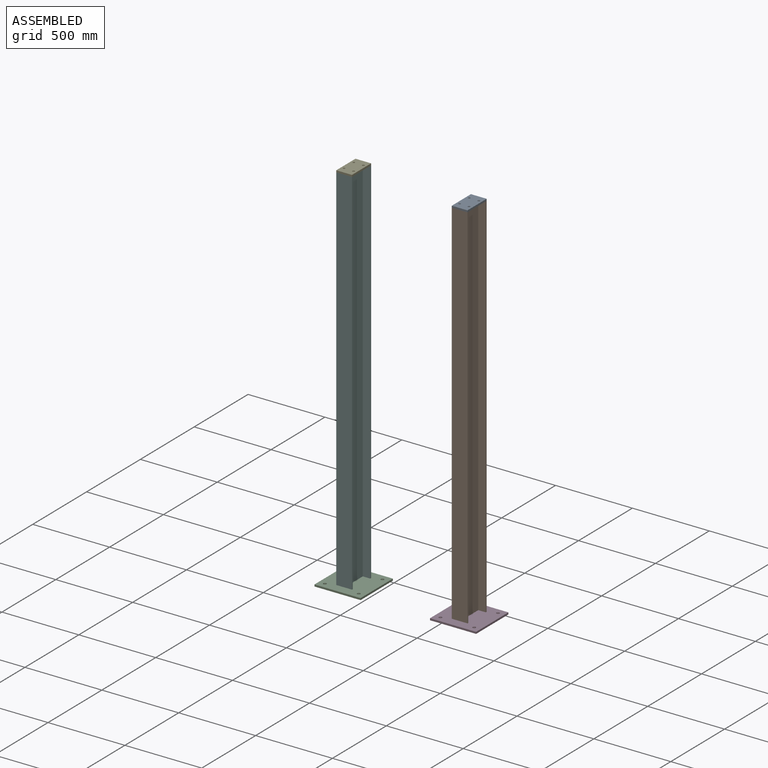
[diagram: assembled view]
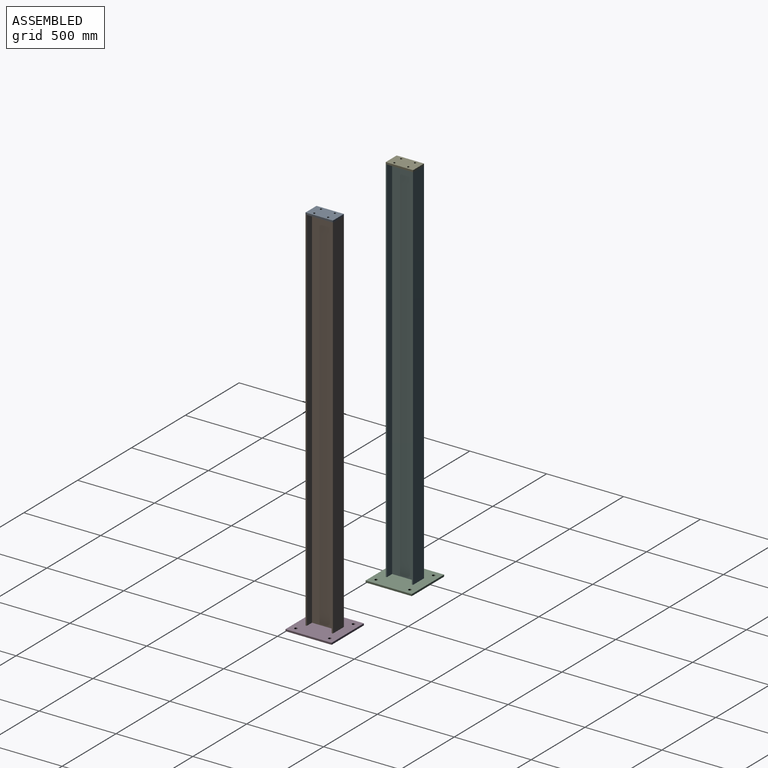
[diagram: assembled view, second angle]
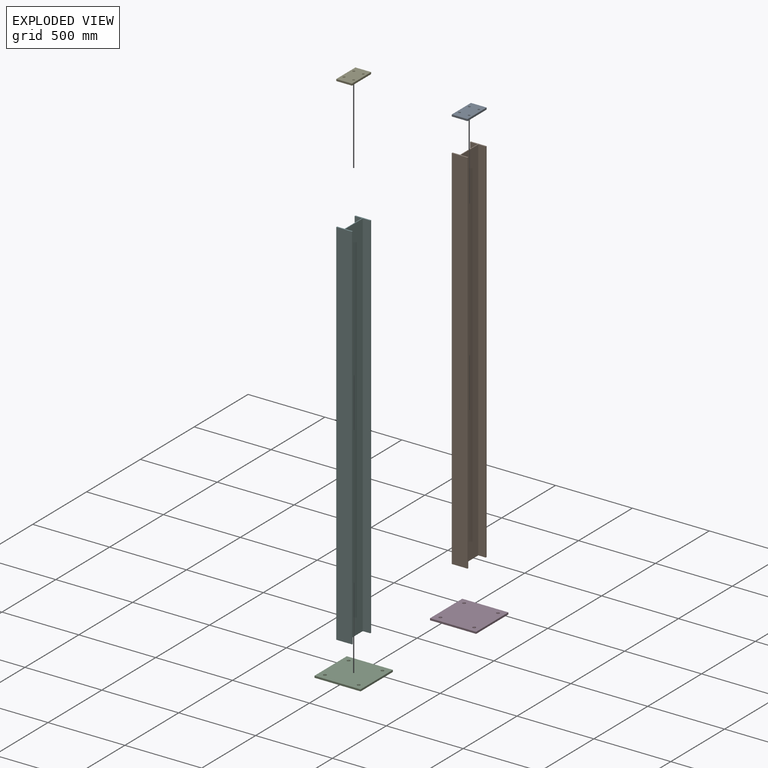
[diagram: exploded view]
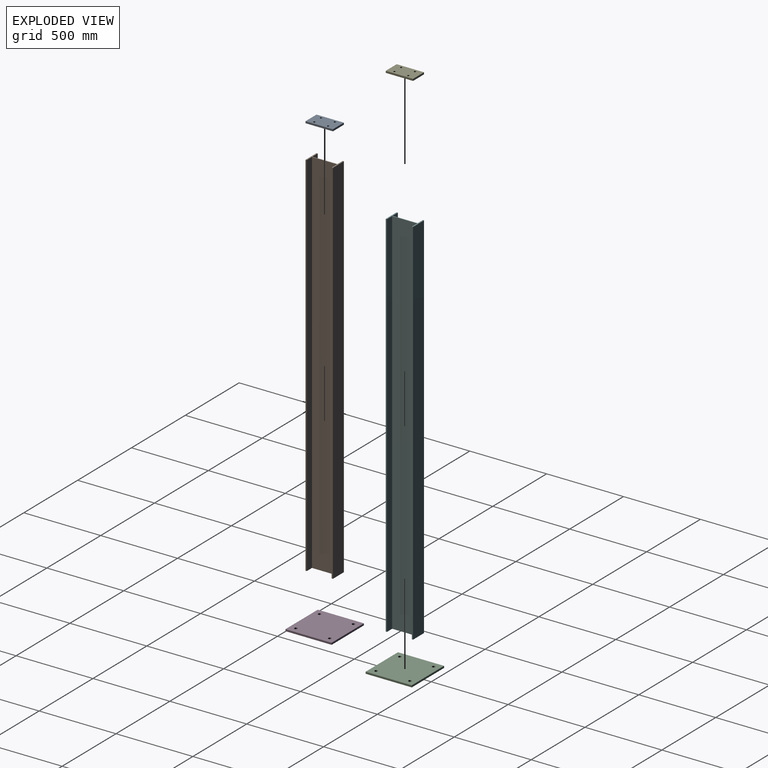
[diagram: exploded view, second angle]
ASSEMBLY  parts=6 mates=4
PART A: 10 faces, bbox 102x12x178 mm
  f0: plane 102x12mm, normal (0,0,-1), area 1224mm2, adj f1,f7,f8,f9
  f1: plane 178x12mm, normal (1,0,0), area 2136mm2, adj f0,f2,f8,f9
  f2: plane 102x12mm, normal (0,0,1), area 1224mm2, adj f1,f7,f8,f9
  f3: cylinder r=7mm len=14mm, axis (0,1,0), area 527.8mm2, adj f8,f9
  f4: cylinder r=7mm len=14mm, axis (0,1,0), area 527.8mm2, adj f8,f9
  f5: cylinder r=7mm len=14mm, axis (0,1,0), area 527.8mm2, adj f8,f9
  f6: cylinder r=7mm len=14mm, axis (0,1,0), area 527.8mm2, adj f8,f9
  f7: plane 178x12mm, normal (-1,0,0), area 2136mm2, adj f0,f2,f8,f9
  f8: plane 178x102mm, normal (0,-1,0), area 17540.2mm2, adj f0,f1,f2,f3,f4,f5,f6,f7
  f9: plane 178x102mm, normal (0,1,0), area 17540.2mm2, adj f0,f1,f2,f3,f4,f5,f6,f7
PART B: 14 faces, bbox 102x2416x178 mm
  f0: plane 2416x162.2mm, normal (-1,0,0), area 391875.2mm2, adj f1,f11,f12,f13
  f1: plane 2416x48.6mm, normal (0,0,1), area 117417.6mm2, adj f0,f2,f12,f13
  f2: plane 2416x7.9mm, normal (-1,0,0), area 19086.4mm2, adj f1,f3,f12,f13
  f3: plane 2416x102mm, normal (0,0,-1), area 246432mm2, adj f2,f4,f12,f13
  f4: plane 2416x7.9mm, normal (1,0,0), area 19086.4mm2, adj f3,f5,f12,f13
  f5: plane 2416x48.6mm, normal (0,0,1), area 117417.6mm2, adj f4,f6,f12,f13
  f6: plane 2416x162.2mm, normal (1,0,0), area 391875.2mm2, adj f5,f7,f12,f13
  f7: plane 2416x48.6mm, normal (0,0,-1), area 117417.6mm2, adj f6,f8,f12,f13
  f8: plane 2416x7.9mm, normal (1,0,0), area 19086.4mm2, adj f7,f9,f12,f13
  f9: plane 2416x102mm, normal (0,0,1), area 246432mm2, adj f8,f10,f12,f13
  f10: plane 2416x7.9mm, normal (-1,0,0), area 19086.4mm2, adj f9,f11,f12,f13
  f11: plane 2416x48.6mm, normal (0,0,-1), area 117417.6mm2, adj f0,f10,f12,f13
  f12: plane 178x102mm, normal (0,-1,0), area 2390.2mm2, adj f0,f1,f2,f3,f4,f5,f6,f7
  f13: plane 178x102mm, normal (0,1,0), area 2390.2mm2, adj f0,f1,f2,f3,f4,f5,f6,f7
PART C: 10 faces, bbox 300x300x12 mm
  f0: plane 300x12mm, normal (1,0,0), area 3600mm2, adj f1,f7,f8,f9
  f1: plane 300x12mm, normal (0,1,0), area 3600mm2, adj f0,f2,f8,f9
  f2: plane 300x12mm, normal (-1,0,0), area 3600mm2, adj f1,f7,f8,f9
  f3: cylinder r=10mm len=20mm, axis (0,0,-1), area 754mm2, adj f8,f9
  f4: cylinder r=10mm len=20mm, axis (0,0,-1), area 754mm2, adj f8,f9
  f5: cylinder r=10mm len=20mm, axis (0,0,-1), area 754mm2, adj f8,f9
  f6: cylinder r=10mm len=20mm, axis (0,0,-1), area 754mm2, adj f8,f9
  f7: plane 300x12mm, normal (0,-1,0), area 3600mm2, adj f0,f2,f8,f9
  f8: plane 300x300mm, normal (0,0,1), area 88743.4mm2, adj f0,f1,f2,f3,f4,f5,f6,f7
  f9: plane 300x300mm, normal (0,0,-1), area 88743.4mm2, adj f0,f1,f2,f3,f4,f5,f6,f7
PART D: same geometry as C
PART E: same geometry as A
PART F: 14 faces, bbox 102x2426x178 mm
  f0: plane 2426x102mm, normal (0,0,-1), area 247452mm2, adj f1,f11,f12,f13
  f1: plane 2426x7.9mm, normal (1,0,0), area 19165.4mm2, adj f0,f2,f12,f13
  f2: plane 2426x48.6mm, normal (0,0,1), area 117903.6mm2, adj f1,f3,f12,f13
  f3: plane 2426x162.2mm, normal (1,0,0), area 393497.2mm2, adj f2,f4,f12,f13
  f4: plane 2426x48.6mm, normal (0,0,-1), area 117903.6mm2, adj f3,f5,f12,f13
  f5: plane 2426x7.9mm, normal (1,0,0), area 19165.4mm2, adj f4,f6,f12,f13
  f6: plane 2426x102mm, normal (0,0,1), area 247452mm2, adj f5,f7,f12,f13
  f7: plane 2426x7.9mm, normal (-1,0,0), area 19165.4mm2, adj f6,f8,f12,f13
  f8: plane 2426x48.6mm, normal (0,0,-1), area 117903.6mm2, adj f7,f9,f12,f13
  f9: plane 2426x162.2mm, normal (-1,0,0), area 393497.2mm2, adj f8,f10,f12,f13
  f10: plane 2426x48.6mm, normal (0,0,1), area 117903.6mm2, adj f9,f11,f12,f13
  f11: plane 2426x7.9mm, normal (-1,0,0), area 19165.4mm2, adj f0,f10,f12,f13
  f12: plane 178x102mm, normal (0,-1,0), area 2390.2mm2, adj f0,f1,f2,f3,f4,f5,f6,f7
  f13: plane 178x102mm, normal (0,1,0), area 2390.2mm2, adj f0,f1,f2,f3,f4,f5,f6,f7
PLACE A rot(axis=(-1,0,0),90deg) t=(-212.14,-140.9,1420.07)mm
PLACE B rot(axis=(-1,0,0),90deg) t=(-212.14,-140.9,-995.93)mm
PLACE C t=(-961.21,-144.05,-1008.67)mm
PLACE D t=(-212.14,-140.9,-1007.93)mm
PLACE E rot(axis=(-1,0,0),90deg) t=(-961.21,-144.05,1429.33)mm
PLACE F rot(axis=(-1,0,0),90deg) t=(-961.21,-144.05,-996.67)mm
MATE fastened E.f9 <-> F.f12  axis (0,0,-1) through (-961.21,-144.05,1429.33)mm
MATE fastened C.f8 <-> F.f13  axis (0,0,1) through (-961.21,-144.05,-996.67)mm
MATE fastened D.f8 <-> B.f13  axis (0,0,1) through (-212.14,-140.9,-995.93)mm
MATE fastened A.f9 <-> B.f12  axis (0,0,-1) through (-212.14,-140.9,1420.07)mm
